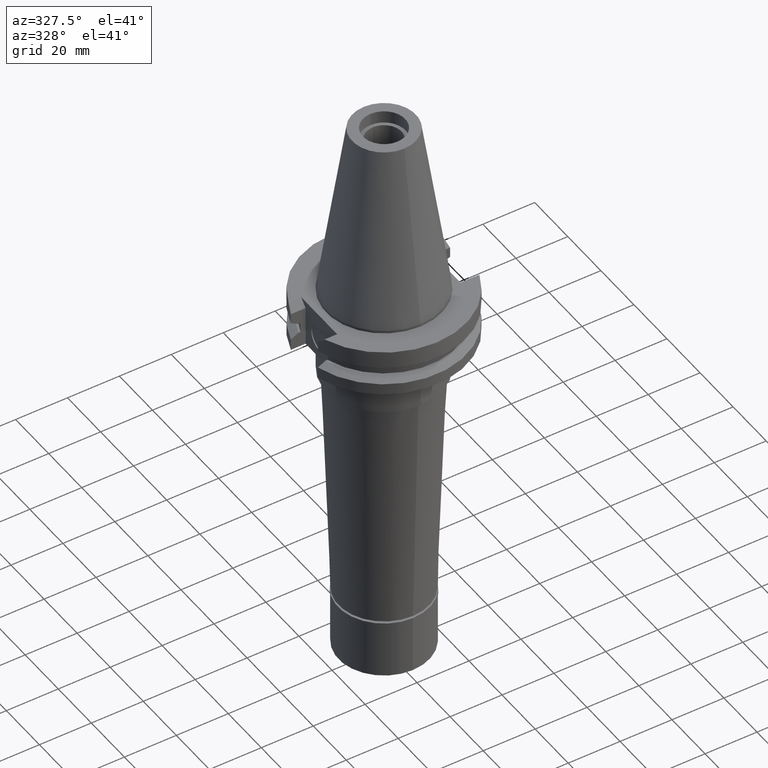
[diagram: clean part render]
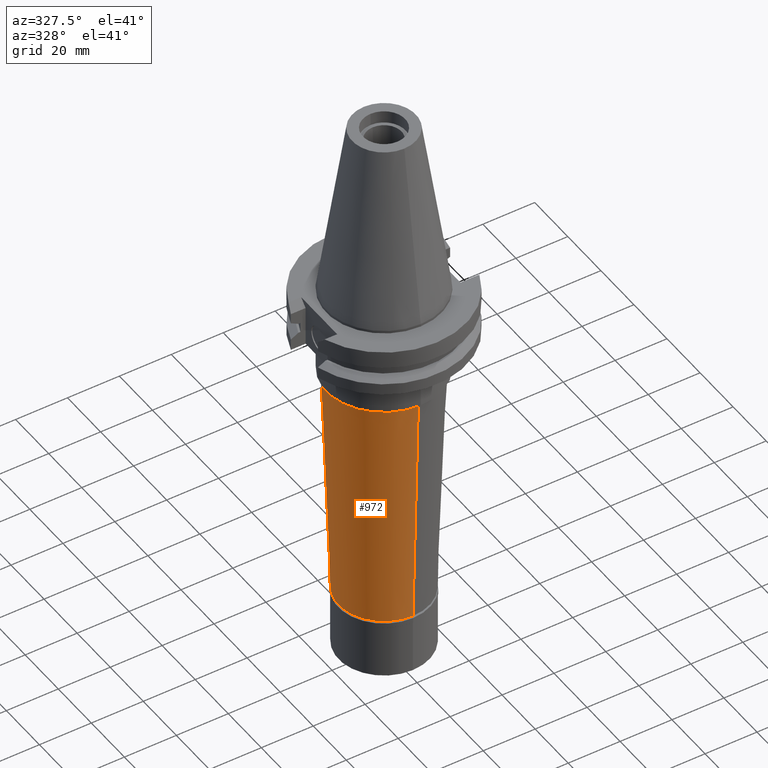
[diagram: same view with one face highlighted and labeled with its STEP entity id]
A machine part, auxiliary view. The second image highlights one B-rep face of the part: STEP entity #972.
In plain terms, the highlighted conical surface has half-angle 2 deg.
Its self-contained STEP definition (entity closure, byte-faithful):
#86 = AXIS2_PLACEMENT_3D ( 'NONE', #2249, #3277, #1192 ) ;
#175 = VERTEX_POINT ( 'NONE', #2591 ) ;
#278 = CARTESIAN_POINT ( 'NONE',  ( 0.0000000000000000000, 20.76858402443000173, -35.50000000000000000 ) ) ;
#461 = CIRCLE ( 'NONE', #86, 17.50000000000000000 ) ;
#483 = EDGE_CURVE ( 'NONE', #1326, #175, #461, .T. ) ;
#586 = CARTESIAN_POINT ( 'NONE',  ( 0.0000000000000000000, 0.0000000000000000000, -82.29999999999999716 ) ) ;
#607 = VERTEX_POINT ( 'NONE', #278 ) ;
#622 = DIRECTION ( 'NONE',  ( 0.0000000000000000000, 0.03489949670251984992, -0.9993908270190949850 ) ) ;
#744 = CONICAL_SURFACE ( 'NONE', #1461, 19.13429201221000042, 0.03490658503987931205 ) ;
#950 = EDGE_LOOP ( 'NONE', ( #1243, #3283, #1106, #2944 ) ) ;
#972 = ADVANCED_FACE ( 'NONE', ( #1684 ), #744, .T. ) ;
#1045 = LINE ( 'NONE', #1845, #3081 ) ;
#1086 = CARTESIAN_POINT ( 'NONE',  ( 0.0000000000000000000, -20.76858402443000173, -35.50000000000000000 ) ) ;
#1106 = ORIENTED_EDGE ( 'NONE', *, *, #1186, .T. ) ;
#1186 = EDGE_CURVE ( 'NONE', #3212, #607, #2897, .T. ) ;
#1192 = DIRECTION ( 'NONE',  ( 0.0000000000000000000, 1.000000000000000000, 0.0000000000000000000 ) ) ;
#1227 = CARTESIAN_POINT ( 'NONE',  ( 0.0000000000000000000, 0.0000000000000000000, -35.50000000000000000 ) ) ;
#1243 = ORIENTED_EDGE ( 'NONE', *, *, #483, .T. ) ;
#1326 = VERTEX_POINT ( 'NONE', #2580 ) ;
#1461 = AXIS2_PLACEMENT_3D ( 'NONE', #586, #1635, #3176 ) ;
#1635 = DIRECTION ( 'NONE',  ( 0.0000000000000000000, 0.0000000000000000000, 1.000000000000000000 ) ) ;
#1684 = FACE_OUTER_BOUND ( 'NONE', #950, .T. ) ;
#1704 = DIRECTION ( 'NONE',  ( 0.0000000000000000000, 0.0000000000000000000, -1.000000000000000000 ) ) ;
#1731 = AXIS2_PLACEMENT_3D ( 'NONE', #1227, #1704, #2972 ) ;
#1845 = CARTESIAN_POINT ( 'NONE',  ( 0.0000000000000000000, 20.76858402443000173, -35.50000000000000000 ) ) ;
#1914 = LINE ( 'NONE', #1086, #2228 ) ;
#2228 = VECTOR ( 'NONE', #622, 1000.000000000000227 ) ;
#2249 = CARTESIAN_POINT ( 'NONE',  ( 0.0000000000000000000, 0.0000000000000000000, -129.0999999999999943 ) ) ;
#2354 = DIRECTION ( 'NONE',  ( 0.0000000000000000000, -0.03489949670251984992, -0.9993908270190949850 ) ) ;
#2378 = EDGE_CURVE ( 'NONE', #3212, #175, #1914, .T. ) ;
#2541 = CARTESIAN_POINT ( 'NONE',  ( 0.0000000000000000000, -20.76858402443000173, -35.50000000000000000 ) ) ;
#2580 = CARTESIAN_POINT ( 'NONE',  ( 0.0000000000000000000, 17.50000000000000000, -129.0999999999999943 ) ) ;
#2591 = CARTESIAN_POINT ( 'NONE',  ( 0.0000000000000000000, -17.50000000000000000, -129.0999999999999943 ) ) ;
#2897 = CIRCLE ( 'NONE', #1731, 20.76858402443000173 ) ;
#2944 = ORIENTED_EDGE ( 'NONE', *, *, #3340, .T. ) ;
#2972 = DIRECTION ( 'NONE',  ( 0.0000000000000000000, -1.000000000000000000, 0.0000000000000000000 ) ) ;
#3081 = VECTOR ( 'NONE', #2354, 1000.000000000000227 ) ;
#3176 = DIRECTION ( 'NONE',  ( 0.0000000000000000000, 1.000000000000000000, 0.0000000000000000000 ) ) ;
#3212 = VERTEX_POINT ( 'NONE', #2541 ) ;
#3277 = DIRECTION ( 'NONE',  ( 0.0000000000000000000, 0.0000000000000000000, 1.000000000000000000 ) ) ;
#3283 = ORIENTED_EDGE ( 'NONE', *, *, #2378, .F. ) ;
#3340 = EDGE_CURVE ( 'NONE', #607, #1326, #1045, .T. ) ;